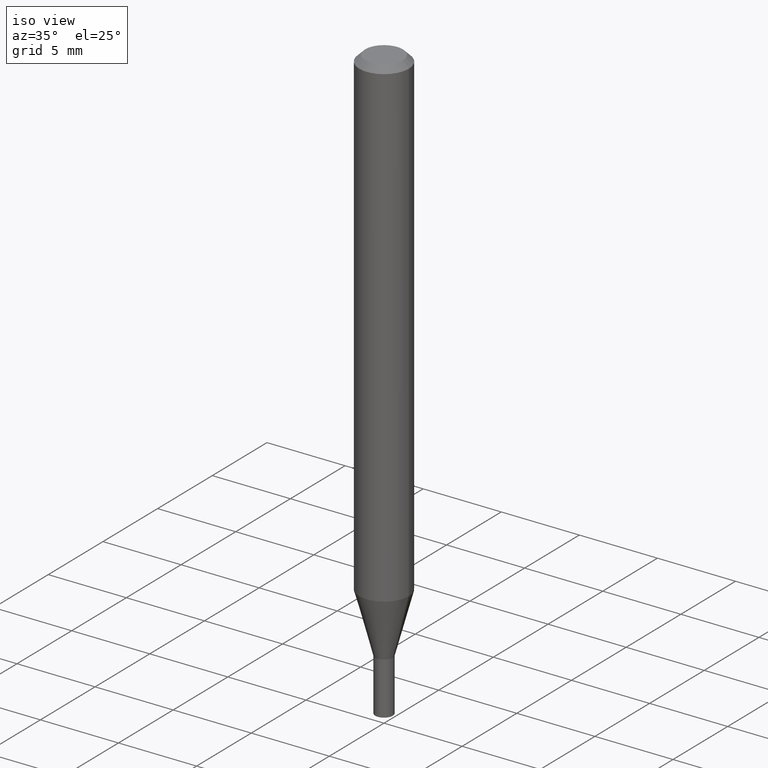
[diagram: clean part render]
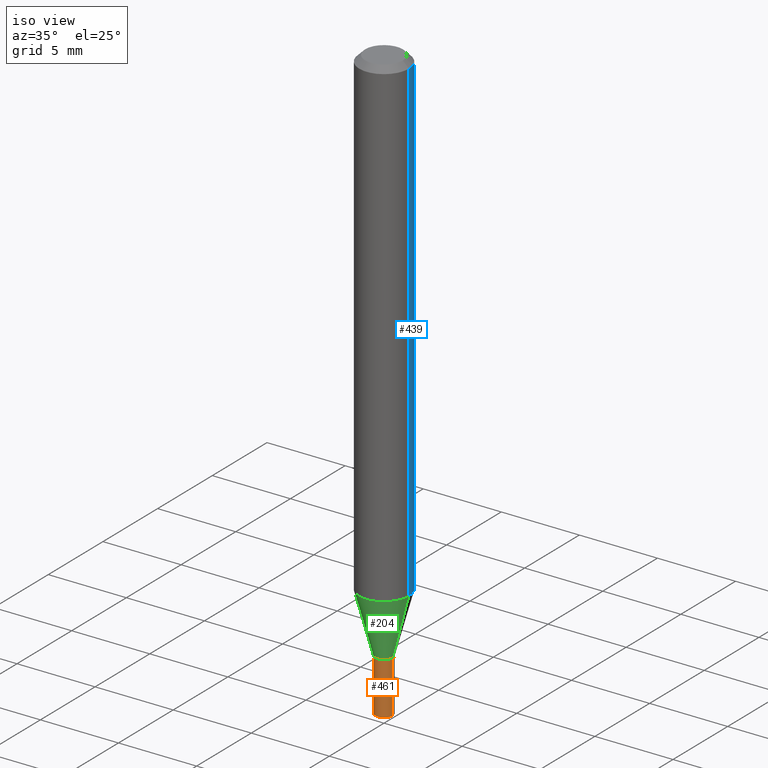
[diagram: same view with three faces highlighted in distinct colors, each labeled with its STEP entity id]
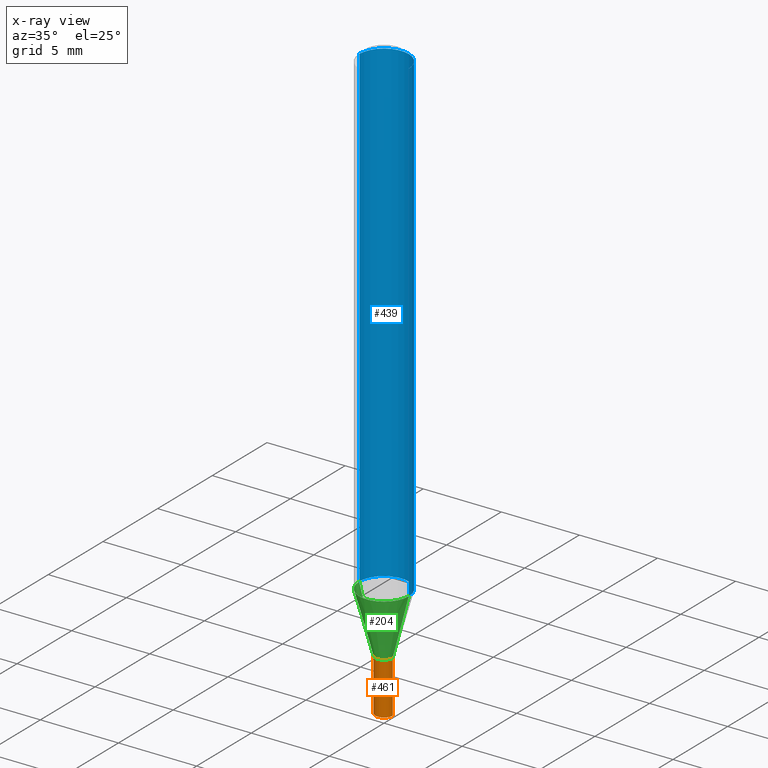
[diagram: x-ray of the same camera — body ghosted, the three highlighted faces saturated]
A machine part, iso view with three faces highlighted in distinct colors.
The next image is the same camera in x-ray (body ghosted, the three faces saturated) — at least one of them is partly hidden behind the body in this view.
Their STEP definitions:

[orange] entity #461 — the highlighted cylindrical surface (edge-blend (fillet) strip) has radius 0.5588 mm, axis along (-0, 0, 1).
#3 = VERTEX_POINT ( 'NONE', #274 ) ;
#18 = DIRECTION ( 'NONE',  ( 1.000000000000000000, -6.982962677686245411E-15, 0.000000000000000000 ) ) ;
#20 = CARTESIAN_POINT ( 'NONE',  ( -0.02199999999999999872, -4.850464838033848848E-15, -1.500000000000000222 ) ) ;
#23 = ORIENTED_EDGE ( 'NONE', *, *, #387, .T. ) ;
#30 = VECTOR ( 'NONE', #192, 39.37007874015748143 ) ;
#48 = EDGE_CURVE ( 'NONE', #3, #212, #277, .T. ) ;
#52 = DIRECTION ( 'NONE',  ( -2.445468806185136877E-29, 3.491481338843145188E-15, 1.000000000000000000 ) ) ;
#55 = CARTESIAN_POINT ( 'NONE',  ( 0.02199999999999999872, -1.536251789090978361E-16, 1.072758890675105930E-30 ) ) ;
#62 = AXIS2_PLACEMENT_3D ( 'NONE', #157, #303, #226 ) ;
#88 = ORIENTED_EDGE ( 'NONE', *, *, #48, .F. ) ;
#111 = CYLINDRICAL_SURFACE ( 'NONE', #62, 0.02199999999999999872 ) ;
#123 = VERTEX_POINT ( 'NONE', #140 ) ;
#133 = CIRCLE ( 'NONE', #169, 0.02199999999999999872 ) ;
#140 = CARTESIAN_POINT ( 'NONE',  ( 0.02199999999999999872, -5.390847187173816013E-15, -1.500000000000000222 ) ) ;
#147 = FACE_OUTER_BOUND ( 'NONE', #233, .T. ) ;
#154 = CARTESIAN_POINT ( 'NONE',  ( -0.02199999999999999872, 1.563194018672220318E-16, -1.082165719856079240E-30 ) ) ;
#157 = CARTESIAN_POINT ( 'NONE',  ( 0.000000000000000000, 0.000000000000000000, 0.000000000000000000 ) ) ;
#169 = AXIS2_PLACEMENT_3D ( 'NONE', #401, #327, #294 ) ;
#192 = DIRECTION ( 'NONE',  ( -2.445468806185136877E-29, 3.491481338843145188E-15, 1.000000000000000000 ) ) ;
#193 = CARTESIAN_POINT ( 'NONE',  ( 0.02199999999999999872, -4.929971650446520927E-15, -1.368000000000000105 ) ) ;
#196 = EDGE_CURVE ( 'NONE', #305, #123, #133, .T. ) ;
#212 = VERTEX_POINT ( 'NONE', #193 ) ;
#218 = ORIENTED_EDGE ( 'NONE', *, *, #404, .F. ) ;
#226 = DIRECTION ( 'NONE',  ( 1.000000000000000000, -6.982962677686265922E-15, 4.876176775795936353E-29 ) ) ;
#233 = EDGE_LOOP ( 'NONE', ( #218, #296, #23, #88 ) ) ;
#235 = LINE ( 'NONE', #154, #30 ) ;
#274 = CARTESIAN_POINT ( 'NONE',  ( -0.02199999999999999872, -4.850464838033848848E-15, -1.368000000000000105 ) ) ;
#277 = CIRCLE ( 'NONE', #317, 0.02199999999999999872 ) ;
#294 = DIRECTION ( 'NONE',  ( 1.000000000000000000, -6.982962677686245411E-15, 0.000000000000000000 ) ) ;
#296 = ORIENTED_EDGE ( 'NONE', *, *, #196, .T. ) ;
#303 = DIRECTION ( 'NONE',  ( -2.445468806185136597E-29, 3.491481338843145583E-15, 1.000000000000000000 ) ) ;
#305 = VERTEX_POINT ( 'NONE', #20 ) ;
#317 = AXIS2_PLACEMENT_3D ( 'NONE', #425, #422, #18 ) ;
#327 = DIRECTION ( 'NONE',  ( -2.445468806185136597E-29, 3.491481338843145583E-15, 1.000000000000000000 ) ) ;
#347 = VECTOR ( 'NONE', #52, 39.37007874015748143 ) ;
#387 = EDGE_CURVE ( 'NONE', #123, #212, #441, .T. ) ;
#401 = CARTESIAN_POINT ( 'NONE',  ( 3.668203209277704895E-29, -5.237222008264718177E-15, -1.500000000000000222 ) ) ;
#404 = EDGE_CURVE ( 'NONE', #305, #3, #235, .T. ) ;
#422 = DIRECTION ( 'NONE',  ( -2.445468806185136597E-29, 3.491481338843145583E-15, 1.000000000000000000 ) ) ;
#425 = CARTESIAN_POINT ( 'NONE',  ( 3.345401326861266963E-29, -4.776346471537423880E-15, -1.368000000000000105 ) ) ;
#441 = LINE ( 'NONE', #55, #347 ) ;
#461 = ADVANCED_FACE ( 'NONE', ( #147 ), #111, .T. ) ;

[blue] entity #439 — the highlighted cylindrical surface (edge-blend (fillet) strip) has radius 1.5875 mm, axis along (-0, 0, 1).
#13 = CYLINDRICAL_SURFACE ( 'NONE', #280, 0.06250000000000000000 ) ;
#25 = LINE ( 'NONE', #462, #100 ) ;
#34 = VERTEX_POINT ( 'NONE', #127 ) ;
#36 = ORIENTED_EDGE ( 'NONE', *, *, #415, .T. ) ;
#41 = AXIS2_PLACEMENT_3D ( 'NONE', #372, #47, #416 ) ;
#47 = DIRECTION ( 'NONE',  ( -2.445468806185136597E-29, 3.491481338843145583E-15, 1.000000000000000000 ) ) ;
#68 = DIRECTION ( 'NONE',  ( -2.445468806185136877E-29, 3.491481338843145188E-15, 1.000000000000000000 ) ) ;
#100 = VECTOR ( 'NONE', #68, 39.37007874015748143 ) ;
#127 = CARTESIAN_POINT ( 'NONE',  ( -0.06249999999999999306, -3.804526638802586582E-15, -1.216851942293459166 ) ) ;
#148 = EDGE_CURVE ( 'NONE', #34, #224, #189, .T. ) ;
#153 = ORIENTED_EDGE ( 'NONE', *, *, #220, .F. ) ;
#159 = DIRECTION ( 'NONE',  ( -2.445468806185136597E-29, 3.491481338843145583E-15, 1.000000000000000000 ) ) ;
#161 = ORIENTED_EDGE ( 'NONE', *, *, #148, .T. ) ;
#162 = DIRECTION ( 'NONE',  ( 1.000000000000000000, -6.982962677686266711E-15, 4.876176775795935793E-29 ) ) ;
#183 = VERTEX_POINT ( 'NONE', #185 ) ;
#185 = CARTESIAN_POINT ( 'NONE',  ( 0.06250000000000000000, -4.888073874380388472E-16, -0.01499999999999999944 ) ) ;
#189 = LINE ( 'NONE', #373, #419 ) ;
#220 = EDGE_CURVE ( 'NONE', #183, #224, #432, .T. ) ;
#224 = VERTEX_POINT ( 'NONE', #304 ) ;
#227 = VERTEX_POINT ( 'NONE', #239 ) ;
#236 = CARTESIAN_POINT ( 'NONE',  ( 3.668203209277705088E-31, -5.237222008264718399E-17, -0.01499999999999999944 ) ) ;
#239 = CARTESIAN_POINT ( 'NONE',  ( 0.06249999999999999306, -4.685051016008040868E-15, -1.216851942293459166 ) ) ;
#240 = FACE_OUTER_BOUND ( 'NONE', #262, .T. ) ;
#262 = EDGE_LOOP ( 'NONE', ( #36, #161, #153, #411 ) ) ;
#280 = AXIS2_PLACEMENT_3D ( 'NONE', #334, #403, #162 ) ;
#302 = AXIS2_PLACEMENT_3D ( 'NONE', #236, #159, #417 ) ;
#304 = CARTESIAN_POINT ( 'NONE',  ( -0.06250000000000000000, -1.706404824517585325E-15, -0.01499999999999999944 ) ) ;
#332 = DIRECTION ( 'NONE',  ( -2.445468806185136877E-29, 3.491481338843145188E-15, 1.000000000000000000 ) ) ;
#334 = CARTESIAN_POINT ( 'NONE',  ( 0.000000000000000000, 0.000000000000000000, 0.000000000000000000 ) ) ;
#335 = EDGE_CURVE ( 'NONE', #227, #183, #25, .T. ) ;
#372 = CARTESIAN_POINT ( 'NONE',  ( 2.975773466624450297E-29, -4.248615848652648409E-15, -1.216851942293459166 ) ) ;
#373 = CARTESIAN_POINT ( 'NONE',  ( -0.06250000000000000000, 4.440892098500626162E-16, -3.074334431409316114E-30 ) ) ;
#403 = DIRECTION ( 'NONE',  ( -2.445468806185136597E-29, 3.491481338843145583E-15, 1.000000000000000000 ) ) ;
#411 = ORIENTED_EDGE ( 'NONE', *, *, #335, .F. ) ;
#415 = EDGE_CURVE ( 'NONE', #227, #34, #456, .T. ) ;
#416 = DIRECTION ( 'NONE',  ( 1.000000000000000000, -6.982962677686262766E-15, 0.000000000000000000 ) ) ;
#417 = DIRECTION ( 'NONE',  ( 1.000000000000000000, -6.982962677686266711E-15, 0.000000000000000000 ) ) ;
#419 = VECTOR ( 'NONE', #332, 39.37007874015748143 ) ;
#432 = CIRCLE ( 'NONE', #302, 0.06250000000000000000 ) ;
#439 = ADVANCED_FACE ( 'NONE', ( #240 ), #13, .T. ) ;
#456 = CIRCLE ( 'NONE', #41, 0.06250000000000000000 ) ;
#462 = CARTESIAN_POINT ( 'NONE',  ( 0.06250000000000000000, -4.364351673553916694E-16, 3.047610484872459871E-30 ) ) ;

[green] entity #204 — the highlighted conical surface has half-angle 15 deg.
#10 = CARTESIAN_POINT ( 'NONE',  ( 3.345401326861266963E-29, -4.776346471537423880E-15, -1.368000000000000105 ) ) ;
#14 = VERTEX_POINT ( 'NONE', #279 ) ;
#15 = EDGE_CURVE ( 'NONE', #447, #14, #126, .T. ) ;
#34 = VERTEX_POINT ( 'NONE', #127 ) ;
#77 = CARTESIAN_POINT ( 'NONE',  ( -0.02199999999999964831, -4.212276854236394930E-15, -1.368000000000000105 ) ) ;
#83 = CARTESIAN_POINT ( 'NONE',  ( -0.02199999999999964831, -4.620027069670204066E-15, -1.368000000000000105 ) ) ;
#85 = DIRECTION ( 'NONE',  ( -2.445468806185136597E-29, 3.491481338843145583E-15, 1.000000000000000000 ) ) ;
#87 = DIRECTION ( 'NONE',  ( 0.2588190451025207395, 1.565188264969626109E-15, 0.9659258262890682012 ) ) ;
#126 = CIRCLE ( 'NONE', #285, 0.02199999999999964831 ) ;
#127 = CARTESIAN_POINT ( 'NONE',  ( -0.06249999999999999306, -3.804526638802586582E-15, -1.216851942293459166 ) ) ;
#141 = DIRECTION ( 'NONE',  ( 1.000000000000000000, -6.982962677686262766E-15, 0.000000000000000000 ) ) ;
#166 = DIRECTION ( 'NONE',  ( 1.000000000000000000, -6.982962677686268288E-15, 0.000000000000000000 ) ) ;
#204 = ADVANCED_FACE ( 'NONE', ( #291 ), #328, .T. ) ;
#227 = VERTEX_POINT ( 'NONE', #239 ) ;
#232 = DIRECTION ( 'NONE',  ( -0.2588190451025207395, 5.211531920934546309E-15, 0.9659258262890682012 ) ) ;
#239 = CARTESIAN_POINT ( 'NONE',  ( 0.06249999999999999306, -4.685051016008040868E-15, -1.216851942293459166 ) ) ;
#248 = EDGE_CURVE ( 'NONE', #14, #227, #410, .T. ) ;
#259 = EDGE_CURVE ( 'NONE', #447, #34, #367, .T. ) ;
#272 = ORIENTED_EDGE ( 'NONE', *, *, #259, .F. ) ;
#279 = CARTESIAN_POINT ( 'NONE',  ( 0.02199999999999964831, -4.929971650446518560E-15, -1.368000000000000105 ) ) ;
#285 = AXIS2_PLACEMENT_3D ( 'NONE', #381, #309, #166 ) ;
#291 = FACE_OUTER_BOUND ( 'NONE', #339, .T. ) ;
#309 = DIRECTION ( 'NONE',  ( -2.445468806185136597E-29, 3.491481338843145583E-15, 1.000000000000000000 ) ) ;
#324 = VECTOR ( 'NONE', #87, 39.37007874015748854 ) ;
#328 = CONICAL_SURFACE ( 'NONE', #465, 0.02199999999999964831, 0.2617993877991494633 ) ;
#339 = EDGE_LOOP ( 'NONE', ( #272, #453, #362, #398 ) ) ;
#362 = ORIENTED_EDGE ( 'NONE', *, *, #248, .T. ) ;
#367 = LINE ( 'NONE', #83, #431 ) ;
#378 = CARTESIAN_POINT ( 'NONE',  ( 0.02199999999999964831, -4.929971650446518560E-15, -1.368000000000000105 ) ) ;
#381 = CARTESIAN_POINT ( 'NONE',  ( 3.345401326861266963E-29, -4.776346471537423880E-15, -1.368000000000000105 ) ) ;
#397 = EDGE_CURVE ( 'NONE', #34, #227, #420, .T. ) ;
#398 = ORIENTED_EDGE ( 'NONE', *, *, #397, .F. ) ;
#405 = DIRECTION ( 'NONE',  ( -2.445468806185136597E-29, 3.491481338843145583E-15, 1.000000000000000000 ) ) ;
#410 = LINE ( 'NONE', #378, #324 ) ;
#412 = CARTESIAN_POINT ( 'NONE',  ( 2.975773466624450297E-29, -4.248615848652648409E-15, -1.216851942293459166 ) ) ;
#420 = CIRCLE ( 'NONE', #433, 0.06250000000000000000 ) ;
#431 = VECTOR ( 'NONE', #232, 39.37007874015748854 ) ;
#433 = AXIS2_PLACEMENT_3D ( 'NONE', #412, #85, #141 ) ;
#442 = DIRECTION ( 'NONE',  ( 1.000000000000000000, -6.982962677686268288E-15, 0.000000000000000000 ) ) ;
#447 = VERTEX_POINT ( 'NONE', #77 ) ;
#453 = ORIENTED_EDGE ( 'NONE', *, *, #15, .T. ) ;
#465 = AXIS2_PLACEMENT_3D ( 'NONE', #10, #405, #442 ) ;